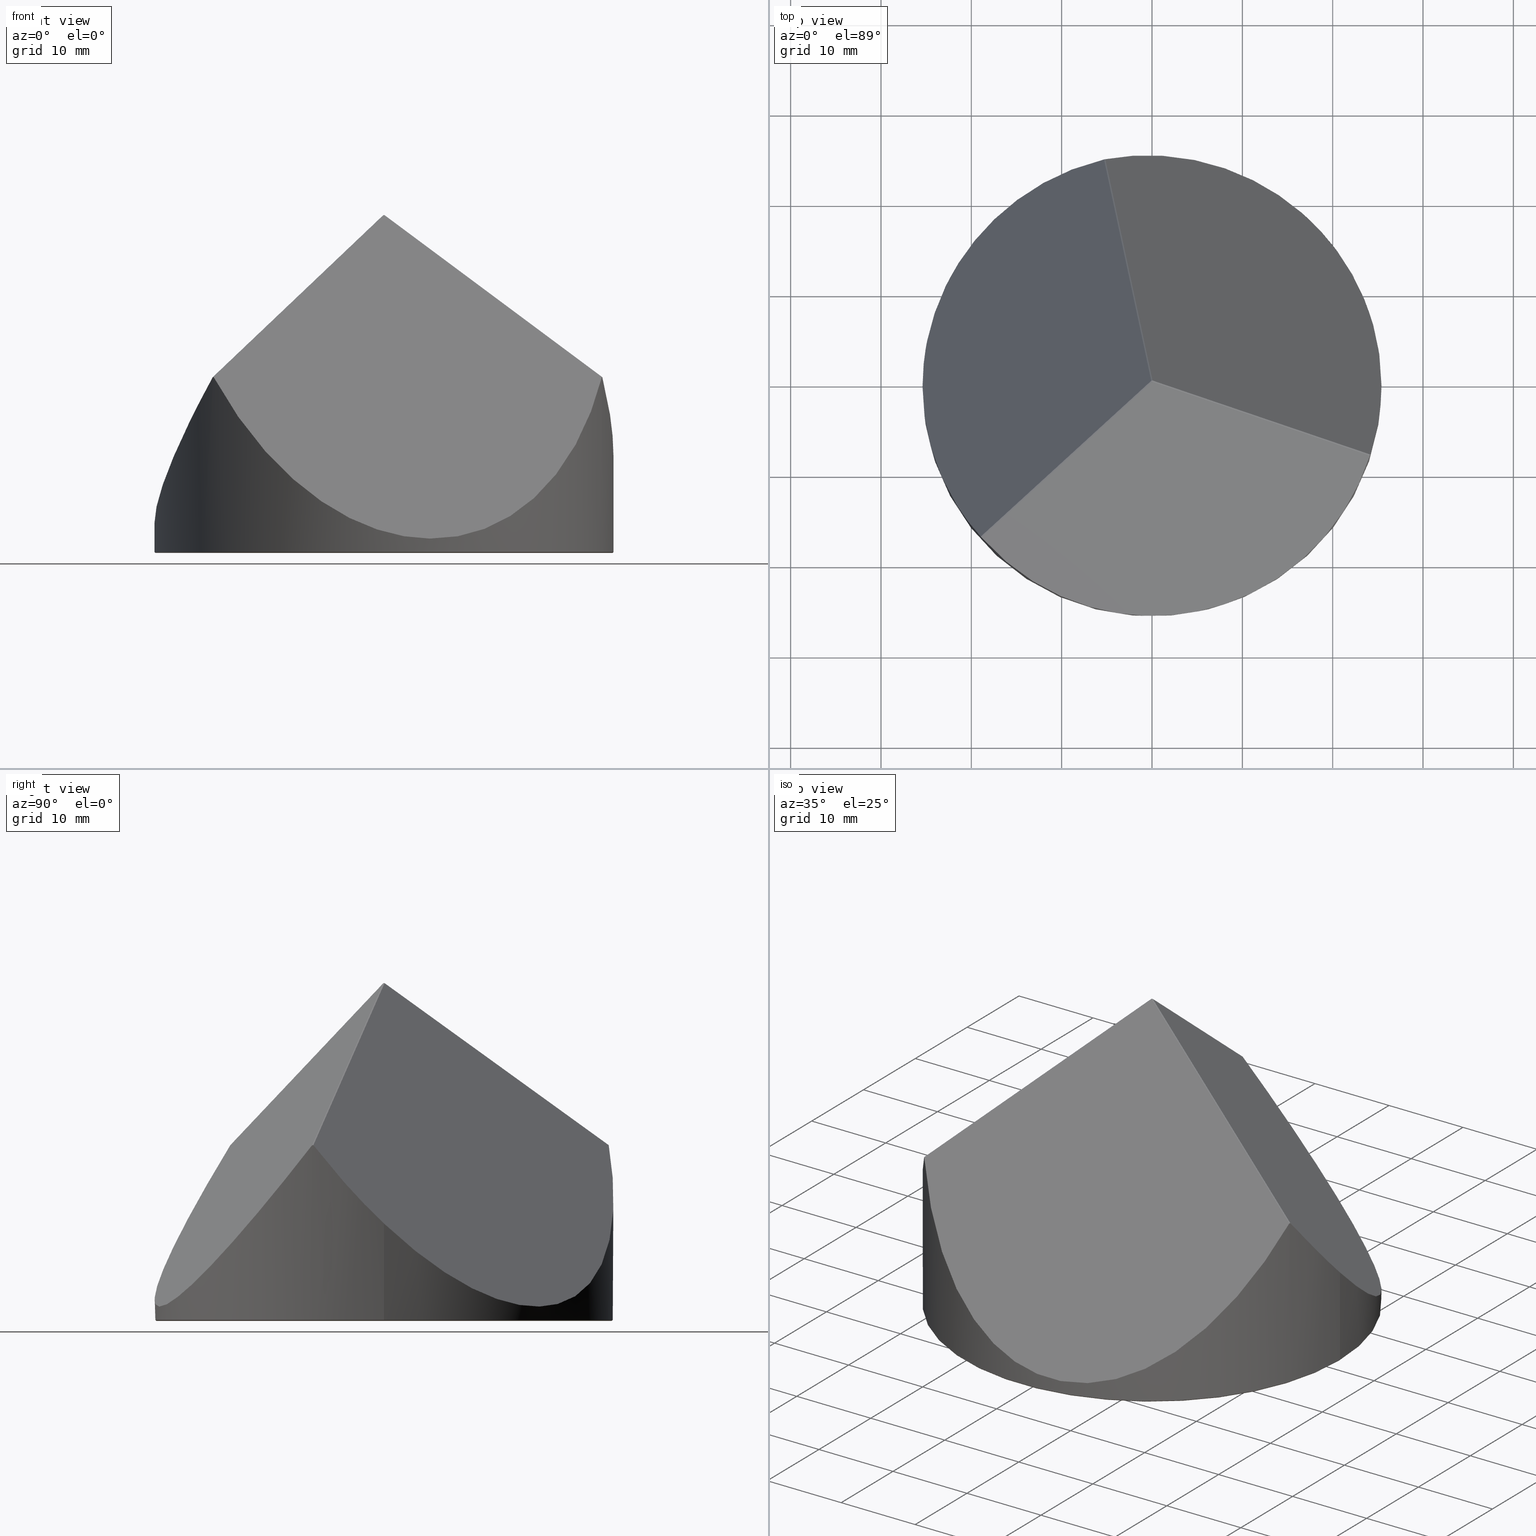
[diagram: canonical four-view strip — front | top / right | iso, engineering-drawing reading convention]
A machine part, canonical four-view strip (front | top / right | iso — engineering-drawing reading convention). The complete STEP part file that produces these views, byte-faithful:
ISO-10303-21;
HEADER;
FILE_DESCRIPTION (( 'STEP AP214' ),
    '1' );
FILE_NAME ('GP26-050-1.STEP',
    '2024-08-15T09:56:34',
    ( 'Windows User' ),
    ( 'P R C' ),
    'SwSTEP 2.0',
    'SolidWorks 2022',
    '' );
FILE_SCHEMA (( 'AUTOMOTIVE_DESIGN' ));
ENDSEC;

DATA;
#1 = FACE_OUTER_BOUND ( 'NONE', #69, .T. ) ;
#2 = ORIENTED_EDGE ( 'NONE', *, *, #347, .F. ) ;
#3 = FILL_AREA_STYLE ('',( #157 ) ) ;
#4 = DIRECTION ( 'NONE',  ( 0.1190464341463257220, -0.5649436076728171496, -0.8164965809277259234 ) ) ;
#5 = CLOSED_SHELL ( 'NONE', ( #63, #17, #47, #192, #82, #278, #36, #299, #246, #363, #242, #279 ) ) ;
#6 = EDGE_CURVE ( 'NONE', #99, #176, #202, .T. ) ;
#7 = ORIENTED_EDGE ( 'NONE', *, *, #105, .T. ) ;
#8 = ORIENTED_EDGE ( 'NONE', *, *, #100, .F. ) ;
#9 =( BOUNDED_CURVE ( )  B_SPLINE_CURVE ( 3, ( #313, #254, #119, #168 ),
 .UNSPECIFIED., .F., .F. ) 
 B_SPLINE_CURVE_WITH_KNOTS ( ( 4, 4 ),
 ( 0.3159145209226036921, 1.044413662635419904 ),
 .UNSPECIFIED. ) 
 CURVE ( )  GEOMETRIC_REPRESENTATION_ITEM ( )  RATIONAL_B_SPLINE_CURVE ( ( 1.000000000000000000, 0.9562609088465704454, 0.9562609088465704454, 1.000000000000000000 ) ) 
 REPRESENTATION_ITEM ( '' )  );
#10 = DIRECTION ( 'NONE',  ( -0.7071067811865598962, 8.659560562355083235E-17, 0.7071067811865351382 ) ) ;
#11 = AXIS2_PLACEMENT_3D ( 'NONE', #135, #214, #253 ) ;
#12 = ORIENTED_EDGE ( 'NONE', *, *, #241, .T. ) ;
#13 = EDGE_LOOP ( 'NONE', ( #91, #67 ) ) ;
#14 = CIRCLE ( 'NONE', #118, 25.39999999999999858 ) ;
#15 = VERTEX_POINT ( 'NONE', #128 ) ;
#16 = ORIENTED_EDGE ( 'NONE', *, *, #49, .T. ) ;
#17 = ADVANCED_FACE ( 'NONE', ( #232 ), #92, .T. ) ;
#18 = SURFACE_STYLE_USAGE ( .BOTH. , #53 ) ;
#19 = CIRCLE ( 'NONE', #327, 25.39999999999999858 ) ;
#20 = CARTESIAN_POINT ( 'NONE',  ( -16.56111697540093530, 5.413189357140098856, 12.32017074737943041 ) ) ;
#21 = DIRECTION ( 'NONE',  ( -0.000000000000000000, -0.000000000000000000, -1.000000000000000000 ) ) ;
#22 = CONICAL_SURFACE ( 'NONE', #113, 25.30000000000002203, 0.7853981633974657095 ) ;
#23 =( BOUNDED_CURVE ( )  B_SPLINE_CURVE ( 3, ( #138, #304, #52, #51 ),
 .UNSPECIFIED., .F., .T. ) 
 B_SPLINE_CURVE_WITH_KNOTS ( ( 4, 4 ),
 ( 5.238771644544163664, 5.551902276905597233 ),
 .UNSPECIFIED. ) 
 CURVE ( )  GEOMETRIC_REPRESENTATION_ITEM ( )  RATIONAL_B_SPLINE_CURVE ( ( 1.000000000000000000, 0.9918457778570393124, 0.9918457778570393124, 1.000000000000000000 ) ) 
 REPRESENTATION_ITEM ( '' )  );
#24 = DIRECTION ( 'NONE',  ( 0.7071067811865598962, 0.000000000000000000, 0.7071067811865351382 ) ) ;
#25 = CARTESIAN_POINT ( 'NONE',  ( -5.168128125611016088, 24.86866405091493348, 18.91346705688051344 ) ) ;
#26 = DIRECTION ( 'NONE',  ( 0.1683570817218961180, -0.7989509119468820586, 0.5773502691896249539 ) ) ;
#27 =( NAMED_UNIT ( * ) SI_UNIT ( $, .STERADIAN. ) SOLID_ANGLE_UNIT ( ) );
#28 = CARTESIAN_POINT ( 'NONE',  ( 24.15037539174727499, -7.869027301477095726, 18.91337426047529746 ) ) ;
#29 =( BOUNDED_CURVE ( )  B_SPLINE_CURVE ( 3, ( #110, #147, #124, #283 ),
 .UNSPECIFIED., .F., .F. ) 
 B_SPLINE_CURVE_WITH_KNOTS ( ( 4, 4 ),
 ( 6.280401418618429155, 6.285969195740780613 ),
 .UNSPECIFIED. ) 
 CURVE ( )  GEOMETRIC_REPRESENTATION_ITEM ( )  RATIONAL_B_SPLINE_CURVE ( ( 1.000000000000000000, 0.9999974166564946643, 0.9999974166564946643, 1.000000000000000000 ) ) 
 REPRESENTATION_ITEM ( '' )  );
#30 = DIRECTION ( 'NONE',  ( 0.000000000000000000, -1.000000000000000000, 9.327454625329653939E-14 ) ) ;
#31 = LINE ( 'NONE', #340, #248 ) ;
#32 = SURFACE_SIDE_STYLE ('',( #142 ) ) ;
#33 = DIRECTION ( 'NONE',  ( 0.6077332452617951741, 0.5452769656516149865, 0.5773502691896267303 ) ) ;
#34 =( BOUNDED_CURVE ( )  B_SPLINE_CURVE ( 3, ( #290, #150, #262, #139 ),
 .UNSPECIFIED., .F., .F. ) 
 B_SPLINE_CURVE_WITH_KNOTS ( ( 4, 4 ),
 ( 5.551902276905597233, 7.327598969815007912 ),
 .UNSPECIFIED. ) 
 CURVE ( )  GEOMETRIC_REPRESENTATION_ITEM ( )  RATIONAL_B_SPLINE_CURVE ( ( 1.000000000000000000, 0.7540550383317463634, 0.7540550383317463634, 1.000000000000000000 ) ) 
 REPRESENTATION_ITEM ( '' )  );
#35 = ORIENTED_EDGE ( 'NONE', *, *, #273, .F. ) ;
#36 = ADVANCED_FACE ( 'NONE', ( #96 ), #71, .T. ) ;
#37 = ORIENTED_EDGE ( 'NONE', *, *, #273, .T. ) ;
#38 = LINE ( 'NONE', #259, #163 ) ;
#39 = VECTOR ( 'NONE', #228, 999.9999999999998863 ) ;
#40 = CARTESIAN_POINT ( 'NONE',  ( -3.514989956223204537, 17.02357529968344352, 24.58260646783990566 ) ) ;
#41 = ORIENTED_EDGE ( 'NONE', *, *, #210, .F. ) ;
#42 = ORIENTED_EDGE ( 'NONE', *, *, #174, .F. ) ;
#43 = DIRECTION ( 'NONE',  ( 0.4297322988771145047, 0.3855690400370906934, -0.8164965809277261455 ) ) ;
#44 = ORIENTED_EDGE ( 'NONE', *, *, #311, .T. ) ;
#45 =( NAMED_UNIT ( * ) PLANE_ANGLE_UNIT ( ) SI_UNIT ( $, .RADIAN. ) );
#46 = CARTESIAN_POINT ( 'NONE',  ( 0.000000000000000000, 0.000000000000000000, -0.4400000000000237055 ) ) ;
#47 = ADVANCED_FACE ( 'NONE', ( #357 ), #187, .T. ) ;
#48 =( NAMED_UNIT ( * ) SI_UNIT ( $, .STERADIAN. ) SOLID_ANGLE_UNIT ( ) );
#49 = EDGE_CURVE ( 'NONE', #286, #123, #287, .T. ) ;
#50 = VECTOR ( 'NONE', #87, 1000.000000000000114 ) ;
#51 = CARTESIAN_POINT ( 'NONE',  ( 25.39999999999999858, 3.110602869834276865E-15, 10.22384084278788308 ) ) ;
#52 = CARTESIAN_POINT ( 'NONE',  ( 25.40000000000000924, -2.662061765035191208, 12.73801817858958607 ) ) ;
#53 = SURFACE_SIDE_STYLE ('',( #134 ) ) ;
#54 = DIRECTION ( 'NONE',  ( 0.7760903269836917362, -0.2536739462952649626, -0.5773502691896257311 ) ) ;
#55 = VECTOR ( 'NONE', #336, 1000.000000000000000 ) ;
#56 = DIRECTION ( 'NONE',  ( -1.000000000000000000, 0.000000000000000000, 0.000000000000000000 ) ) ;
#57 = EDGE_CURVE ( 'NONE', #15, #155, #14, .T. ) ;
#58 = DIRECTION ( 'NONE',  ( 3.048784582708371628E-14, 9.327454625329653939E-14, 1.000000000000000000 ) ) ;
#59 = MANIFOLD_SOLID_BREP ( '����2', #5 ) ;
#60 = VECTOR ( 'NONE', #24, 1000.000000000000114 ) ;
#61 = DIRECTION ( 'NONE',  ( 0.000000000000000000, 0.000000000000000000, -1.000000000000000000 ) ) ;
#62 = LINE ( 'NONE', #199, #50 ) ;
#63 = ADVANCED_FACE ( 'NONE', ( #297 ), #177, .T. ) ;
#64 = ORIENTED_EDGE ( 'NONE', *, *, #100, .T. ) ;
#65 = PLANE ( 'NONE',  #366 ) ;
#66 = DIRECTION ( 'NONE',  ( 1.000000000000000000, 0.000000000000000000, 0.000000000000000000 ) ) ;
#67 = ORIENTED_EDGE ( 'NONE', *, *, #251, .T. ) ;
#68 = CARTESIAN_POINT ( 'NONE',  ( -12.98535369465153266, -11.55585824597818068, 24.58260646783991277 ) ) ;
#69 = EDGE_LOOP ( 'NONE', ( #37, #7, #2 ) ) ;
#70 = DIRECTION ( 'NONE',  ( -1.000000000000000000, 0.000000000000000000, 0.000000000000000000 ) ) ;
#71 = PLANE ( 'NONE',  #141 ) ;
#72 = APPLICATION_CONTEXT ( 'automotive_design' ) ;
#73 =( BOUNDED_CURVE ( )  B_SPLINE_CURVE ( 3, ( #116, #28, #310, #167 ),
 .UNSPECIFIED., .F., .T. ) 
 B_SPLINE_CURVE_WITH_KNOTS ( ( 4, 4 ),
 ( 6.280401418618504650, 6.285969195740848114 ),
 .UNSPECIFIED. ) 
 CURVE ( )  GEOMETRIC_REPRESENTATION_ITEM ( )  RATIONAL_B_SPLINE_CURVE ( ( 1.000000000000000000, 0.9999974166564946643, 0.9999974166564946643, 1.000000000000000000 ) ) 
 REPRESENTATION_ITEM ( '' )  );
#74 = ORIENTED_EDGE ( 'NONE', *, *, #126, .F. ) ;
#75 = DIRECTION ( 'NONE',  ( 0.000000000000000000, 0.000000000000000000, 1.000000000000000000 ) ) ;
#76 = CARTESIAN_POINT ( 'NONE',  ( 16.54428126722876868, -5.333294265945349721, 24.58260646783990566 ) ) ;
#77 = VECTOR ( 'NONE', #211, 1000.000000000000227 ) ;
#78 = DIRECTION ( 'NONE',  ( 0.000000000000000000, 0.000000000000000000, 1.000000000000000000 ) ) ;
#79 = VECTOR ( 'NONE', #353, 1000.000000000000114 ) ;
#80 = LINE ( 'NONE', #221, #280 ) ;
#81 =( NAMED_UNIT ( * ) PLANE_ANGLE_UNIT ( ) SI_UNIT ( $, .RADIAN. ) );
#82 = ADVANCED_FACE ( 'NONE', ( #359 ), #362, .T. ) ;
#83 = MECHANICAL_DESIGN_GEOMETRIC_PRESENTATION_REPRESENTATION (  '', ( #101 ), #255 ) ;
#84 = DIRECTION ( 'NONE',  ( -0.1683570817218947302, 0.7989509119468816145, -0.5773502691896258421 ) ) ;
#85 = PLANE ( 'NONE',  #106 ) ;
#86 = CARTESIAN_POINT ( 'NONE',  ( 0.01683570817220000904, -0.07989509119468762854, 36.84504218830038269 ) ) ;
#87 = DIRECTION ( 'NONE',  ( -0.7760903269836917362, 0.2536739462952649626, 0.5773502691896257311 ) ) ;
#88 = STYLED_ITEM ( 'NONE', ( #312 ), #341 ) ;
#89 = ORIENTED_EDGE ( 'NONE', *, *, #252, .F. ) ;
#90 = ORIENTED_EDGE ( 'NONE', *, *, #306, .T. ) ;
#91 = ORIENTED_EDGE ( 'NONE', *, *, #239, .T. ) ;
#92 = CYLINDRICAL_SURFACE ( 'NONE', #193, 25.39999999999999858 ) ;
#93 = DIRECTION ( 'NONE',  ( 0.6077332452617961733, 0.5452769656516147645, 0.5773502691896256200 ) ) ;
#94 = AXIS2_PLACEMENT_3D ( 'NONE', #219, #26, #330 ) ;
#95 =( BOUNDED_CURVE ( )  B_SPLINE_CURVE ( 3, ( #159, #274, #243, #240 ),
 .UNSPECIFIED., .F., .T. ) 
 B_SPLINE_CURVE_WITH_KNOTS ( ( 4, 4 ),
 ( 5.238771644544156558, 7.327598969815005248 ),
 .UNSPECIFIED. ) 
 CURVE ( )  GEOMETRIC_REPRESENTATION_ITEM ( )  RATIONAL_B_SPLINE_CURVE ( ( 1.000000000000000000, 0.6682726517290241697, 0.6682726517290241697, 1.000000000000000000 ) ) 
 REPRESENTATION_ITEM ( '' )  );
#96 = FACE_OUTER_BOUND ( 'NONE', #13, .T. ) ;
#97 = PLANE ( 'NONE',  #302 ) ;
#98 = ORIENTED_EDGE ( 'NONE', *, *, #269, .F. ) ;
#99 = VERTEX_POINT ( 'NONE', #137 ) ;
#100 = EDGE_CURVE ( 'NONE', #286, #99, #125, .T. ) ;
#101 = STYLED_ITEM ( 'NONE', ( #104 ), #59 ) ;
#102 = CARTESIAN_POINT ( 'NONE',  ( -5.306510482835705034, 24.83950374897926494, 18.91346705688070173 ) ) ;
#103 = LINE ( 'NONE', #76, #212 ) ;
#104 = PRESENTATION_STYLE_ASSIGNMENT (( #18 ) ) ;
#105 = EDGE_CURVE ( 'NONE', #176, #319, #136, .T. ) ;
#106 = AXIS2_PLACEMENT_3D ( 'NONE', #195, #4, #84 ) ;
#107 = CARTESIAN_POINT ( 'NONE',  ( 24.12095888907871455, -7.958601778665308046, 18.91346705688044239 ) ) ;
#108 =( GEOMETRIC_REPRESENTATION_CONTEXT ( 3 ) GLOBAL_UNCERTAINTY_ASSIGNED_CONTEXT ( ( #156 ) ) GLOBAL_UNIT_ASSIGNED_CONTEXT ( ( #181, #45, #48 ) ) REPRESENTATION_CONTEXT ( 'NONE', 'WORKASPACE' ) );
#109 = CARTESIAN_POINT ( 'NONE',  ( -5.214282578149510350, 24.85907237667790426, 18.91337426047530101 ) ) ;
#110 = CARTESIAN_POINT ( 'NONE',  ( -18.85838602259694241, -17.01532475807383804, 18.91346705688074437 ) ) ;
#111 = EDGE_CURVE ( 'NONE', #263, #148, #95, .T. ) ;
#112 = VECTOR ( 'NONE', #260, 1000.000000000000000 ) ;
#113 = AXIS2_PLACEMENT_3D ( 'NONE', #344, #178, #66 ) ;
#114 = CARTESIAN_POINT ( 'NONE',  ( -0.07760903269836753882, 0.02536739462953004759, 36.84504218830037559 ) ) ;
#115 = CARTESIAN_POINT ( 'NONE',  ( -18.85838602259694241, -17.01532475807383804, 18.91346705688074437 ) ) ;
#116 = CARTESIAN_POINT ( 'NONE',  ( 24.16489650543270074, -7.824178990905487296, 18.91346705688055252 ) ) ;
#117 = ORIENTED_EDGE ( 'NONE', *, *, #347, .T. ) ;
#118 = AXIS2_PLACEMENT_3D ( 'NONE', #46, #78, #189 ) ;
#119 = CARTESIAN_POINT ( 'NONE',  ( -23.15264638311981571, -12.20290073756595639, 11.19974324389854559 ) ) ;
#120 = DIRECTION ( 'NONE',  ( 0.6887517733186873103, 0.000000000000000000, -0.7249972377536092472 ) ) ;
#121 = DIRECTION ( 'NONE',  ( -0.6077332452617962844, -0.5452769656516146535, -0.5773502691896257311 ) ) ;
#122 = ORIENTED_EDGE ( 'NONE', *, *, #309, .T. ) ;
#123 = VERTEX_POINT ( 'NONE', #328 ) ;
#124 = CARTESIAN_POINT ( 'NONE',  ( -18.92144690364426651, -16.94523736352709875, 18.91337426047528680 ) ) ;
#125 =( BOUNDED_CURVE ( )  B_SPLINE_CURVE ( 3, ( #361, #215, #109, #25 ),
 .UNSPECIFIED., .F., .T. ) 
 B_SPLINE_CURVE_WITH_KNOTS ( ( 4, 4 ),
 ( 6.280401418618402509, 6.285969195740753079 ),
 .UNSPECIFIED. ) 
 CURVE ( )  GEOMETRIC_REPRESENTATION_ITEM ( )  RATIONAL_B_SPLINE_CURVE ( ( 1.000000000000000000, 0.9999974166564946643, 0.9999974166564946643, 1.000000000000000000 ) ) 
 REPRESENTATION_ITEM ( '' )  );
#126 = EDGE_CURVE ( 'NONE', #155, #15, #19, .T. ) ;
#127 = VERTEX_POINT ( 'NONE', #298 ) ;
#128 = CARTESIAN_POINT ( 'NONE',  ( 25.39999999999999858, 3.110602869834276865E-15, -0.4400000000000237055 ) ) ;
#129 = ORIENTED_EDGE ( 'NONE', *, *, #169, .F. ) ;
#130 = CARTESIAN_POINT ( 'NONE',  ( 25.39999999999999858, 3.110602869834276865E-15, 10.22384084278788308 ) ) ;
#131 = EDGE_LOOP ( 'NONE', ( #16, #149, #346, #172 ) ) ;
#132 = ORIENTED_EDGE ( 'NONE', *, *, #210, .T. ) ;
#133 = DIRECTION ( 'NONE',  ( -0.7760903269836911811, 0.2536739462952673496, 0.5773502691896257311 ) ) ;
#134 = SURFACE_STYLE_FILL_AREA ( #303 ) ;
#135 = CARTESIAN_POINT ( 'NONE',  ( 0.000000000000000000, 0.000000000000000000, 0.000000000000000000 ) ) ;
#136 = LINE ( 'NONE', #191, #77 ) ;
#137 = CARTESIAN_POINT ( 'NONE',  ( -5.168128125611016088, 24.86866405091493348, 18.91346705688051344 ) ) ;
#138 = CARTESIAN_POINT ( 'NONE',  ( 24.16489650543270074, -7.824178990905487296, 18.91346705688055252 ) ) ;
#139 = CARTESIAN_POINT ( 'NONE',  ( -5.168128125611016088, 24.86866405091493348, 18.91346705688051344 ) ) ;
#140 = EDGE_CURVE ( 'NONE', #176, #127, #103, .T. ) ;
#141 = AXIS2_PLACEMENT_3D ( 'NONE', #165, #270, #272 ) ;
#142 = SURFACE_STYLE_FILL_AREA ( #3 ) ;
#143 = FACE_OUTER_BOUND ( 'NONE', #321, .T. ) ;
#144 = EDGE_LOOP ( 'NONE', ( #41, #151, #35, #98 ) ) ;
#145 = ORIENTED_EDGE ( 'NONE', *, *, #261, .T. ) ;
#146 = AXIS2_PLACEMENT_3D ( 'NONE', #281, #61, #223 ) ;
#147 = CARTESIAN_POINT ( 'NONE',  ( -18.88996524202608995, -16.98032494944516912, 18.91337426047529036 ) ) ;
#148 = VERTEX_POINT ( 'NONE', #107 ) ;
#149 = ORIENTED_EDGE ( 'NONE', *, *, #252, .T. ) ;
#150 = CARTESIAN_POINT ( 'NONE',  ( 25.39999999999999858, 17.41975240290805260, -6.228199174431550134 ) ) ;
#151 = ORIENTED_EDGE ( 'NONE', *, *, #140, .F. ) ;
#152 = CARTESIAN_POINT ( 'NONE',  ( -0.07760903269836753882, 0.02536739462953004759, 36.84504218830037559 ) ) ;
#153 = PRODUCT_DEFINITION_SHAPE ( 'NONE', 'NONE',  #217 ) ;
#154 = SHAPE_DEFINITION_REPRESENTATION ( #153, #341 ) ;
#155 = VERTEX_POINT ( 'NONE', #331 ) ;
#156 = UNCERTAINTY_MEASURE_WITH_UNIT (LENGTH_MEASURE( 1.000000000000000082E-05 ), #181, 'distance_accuracy_value', 'NONE');
#157 = FILL_AREA_STYLE_COLOUR ( '', #196 ) ;
#158 = ORIENTED_EDGE ( 'NONE', *, *, #140, .T. ) ;
#159 = CARTESIAN_POINT ( 'NONE',  ( -18.85838602259694241, -17.01532475807383804, 18.91346705688074437 ) ) ;
#160 = DIRECTION ( 'NONE',  ( -1.000000000000000000, 0.000000000000000000, 0.000000000000000000 ) ) ;
#161 = AXIS2_PLACEMENT_3D ( 'NONE', #332, #334, #275 ) ;
#162 = CARTESIAN_POINT ( 'NONE',  ( 25.30000000000002203, 0.000000000000000000, -0.5399999999999988143 ) ) ;
#163 = VECTOR ( 'NONE', #10, 1000.000000000000114 ) ;
#164 = CARTESIAN_POINT ( 'NONE',  ( -25.39999999999999858, 0.000000000000000000, 2.817124151136544796 ) ) ;
#165 = CARTESIAN_POINT ( 'NONE',  ( 0.000000000000000000, 0.000000000000000000, -0.5400000000000000355 ) ) ;
#166 = FACE_OUTER_BOUND ( 'NONE', #131, .T. ) ;
#167 = CARTESIAN_POINT ( 'NONE',  ( 24.12095888907871455, -7.958601778665308046, 18.91346705688044239 ) ) ;
#168 = CARTESIAN_POINT ( 'NONE',  ( -18.95283076346759898, -16.91006227224950820, 18.91346705688047081 ) ) ;
#169 = EDGE_CURVE ( 'NONE', #355, #15, #245, .T. ) ;
#170 =( LENGTH_UNIT ( ) NAMED_UNIT ( * ) SI_UNIT ( .MILLI., .METRE. ) );
#171 = ORIENTED_EDGE ( 'NONE', *, *, #126, .T. ) ;
#172 = ORIENTED_EDGE ( 'NONE', *, *, #173, .T. ) ;
#173 = EDGE_CURVE ( 'NONE', #319, #286, #80, .T. ) ;
#174 = EDGE_CURVE ( 'NONE', #127, #355, #23, .T. ) ;
#175 = APPLICATION_PROTOCOL_DEFINITION ( 'draft international standard', 'automotive_design', 1998, #308 ) ;
#176 = VERTEX_POINT ( 'NONE', #244 ) ;
#177 = CONICAL_SURFACE ( 'NONE', #161, 25.30000000000002203, 0.7853981633974657095 ) ;
#178 = DIRECTION ( 'NONE',  ( 0.000000000000000000, 0.000000000000000000, 1.000000000000000000 ) ) ;
#179 = ORIENTED_EDGE ( 'NONE', *, *, #269, .T. ) ;
#180 = LINE ( 'NONE', #152, #79 ) ;
#181 =( LENGTH_UNIT ( ) NAMED_UNIT ( * ) SI_UNIT ( .MILLI., .METRE. ) );
#182 = ORIENTED_EDGE ( 'NONE', *, *, #241, .F. ) ;
#183 = EDGE_LOOP ( 'NONE', ( #345, #264, #289, #182, #323, #64 ) ) ;
#184 =( NAMED_UNIT ( * ) SI_UNIT ( $, .STERADIAN. ) SOLID_ANGLE_UNIT ( ) );
#185 = DIRECTION ( 'NONE',  ( -1.000000000000000000, 0.000000000000000000, 0.000000000000000000 ) ) ;
#186 = LINE ( 'NONE', #162, #60 ) ;
#187 = CYLINDRICAL_SURFACE ( 'NONE', #188, 25.39999999999999858 ) ;
#188 = AXIS2_PLACEMENT_3D ( 'NONE', #305, #21, #160 ) ;
#189 = DIRECTION ( 'NONE',  ( -1.000000000000000000, 0.000000000000000000, 0.000000000000000000 ) ) ;
#190 = PRODUCT_DEFINITION_FORMATION_WITH_SPECIFIED_SOURCE ( '�κ�', '', #238, .NOT_KNOWN. ) ;
#191 = CARTESIAN_POINT ( 'NONE',  ( -0.07760903269836753882, 0.02536739462953004759, 36.84504218830037559 ) ) ;
#192 = ADVANCED_FACE ( 'NONE', ( #166 ), #271, .T. ) ;
#193 = AXIS2_PLACEMENT_3D ( 'NONE', #204, #322, #70 ) ;
#194 = CARTESIAN_POINT ( 'NONE',  ( 25.39999999999999858, 3.110602869834276865E-15, 19.00000000000000000 ) ) ;
#195 = CARTESIAN_POINT ( 'NONE',  ( -3.653372313447766029, 16.99441499774780695, 24.58260646783990566 ) ) ;
#196 = COLOUR_RGB ( '',1.000000000000000000, 1.000000000000000000, 1.000000000000000000 ) ;
#197 = FACE_OUTER_BOUND ( 'NONE', #291, .T. ) ;
#198 = PLANE ( 'NONE',  #301 ) ;
#199 = CARTESIAN_POINT ( 'NONE',  ( 16.50034365087477539, -5.467717053705210439, 24.58260646783990921 ) ) ;
#200 = EDGE_CURVE ( 'NONE', #203, #15, #186, .T. ) ;
#201 = APPLICATION_PROTOCOL_DEFINITION ( 'draft international standard', 'automotive_design', 1998, #72 ) ;
#202 = LINE ( 'NONE', #40, #112 ) ;
#203 = VERTEX_POINT ( 'NONE', #339 ) ;
#204 = CARTESIAN_POINT ( 'NONE',  ( 0.000000000000000000, 0.000000000000000000, 19.00000000000000000 ) ) ;
#205 = AXIS2_PLACEMENT_3D ( 'NONE', #114, #58, #30 ) ;
#206 = ORIENTED_EDGE ( 'NONE', *, *, #105, .F. ) ;
#207 = LINE ( 'NONE', #68, #282 ) ;
#208 = CARTESIAN_POINT ( 'NONE',  ( 16.54428126722876868, -5.333294265945349721, 24.58260646783990566 ) ) ;
#209 = EDGE_LOOP ( 'NONE', ( #117, #236, #257, #231 ) ) ;
#210 = EDGE_CURVE ( 'NONE', #127, #148, #73, .T. ) ;
#211 = DIRECTION ( 'NONE',  ( -0.9785110319005634327, -0.2061944724014065089, 4.907193138578176547E-14 ) ) ;
#212 = VECTOR ( 'NONE', #54, 1000.000000000000114 ) ;
#213 = CARTESIAN_POINT ( 'NONE',  ( 0.000000000000000000, 0.000000000000000000, -0.4400000000000237055 ) ) ;
#214 = DIRECTION ( 'NONE',  ( 0.000000000000000000, 0.000000000000000000, 1.000000000000000000 ) ) ;
#215 = CARTESIAN_POINT ( 'NONE',  ( -5.260410149721108652, 24.84935225092225508, 18.91337426047529746 ) ) ;
#216 =( LENGTH_UNIT ( ) NAMED_UNIT ( * ) SI_UNIT ( .MILLI., .METRE. ) );
#217 = PRODUCT_DEFINITION ( 'δ֪', '', #190, #356 ) ;
#218 = AXIS2_PLACEMENT_3D ( 'NONE', #20, #133, #358 ) ;
#219 = CARTESIAN_POINT ( 'NONE',  ( 3.592598988921612779, -17.04894269431294873, 12.32017074737939843 ) ) ;
#220 =( GEOMETRIC_REPRESENTATION_CONTEXT ( 3 ) GLOBAL_UNCERTAINTY_ASSIGNED_CONTEXT ( ( #268 ) ) GLOBAL_UNIT_ASSIGNED_CONTEXT ( ( #170, #333, #184 ) ) REPRESENTATION_CONTEXT ( 'NONE', 'WORKASPACE' ) );
#221 = CARTESIAN_POINT ( 'NONE',  ( -3.653372313447764697, 16.99441499774780695, 24.58260646783990566 ) ) ;
#222 = CARTESIAN_POINT ( 'NONE',  ( 0.000000000000000000, 0.000000000000000000, -0.5400000000000000355 ) ) ;
#223 = DIRECTION ( 'NONE',  ( -1.000000000000000000, 0.000000000000000000, 0.000000000000000000 ) ) ;
#224 = CARTESIAN_POINT ( 'NONE',  ( 0.03880451634919888926, -0.01268369731476980643, 36.84504218830037559 ) ) ;
#225 = DIRECTION ( 'NONE',  ( 0.000000000000000000, 0.000000000000000000, -1.000000000000000000 ) ) ;
#226 = ORIENTED_EDGE ( 'NONE', *, *, #6, .T. ) ;
#227 = PRESENTATION_LAYER_ASSIGNMENT (  '', '', ( #88 ) ) ;
#228 = DIRECTION ( 'NONE',  ( 0.3106858647308352595, 0.9505126477098836402, -9.812423661582172580E-14 ) ) ;
#229 = ORIENTED_EDGE ( 'NONE', *, *, #174, .T. ) ;
#230 = ORIENTED_EDGE ( 'NONE', *, *, #6, .F. ) ;
#231 = ORIENTED_EDGE ( 'NONE', *, *, #311, .F. ) ;
#232 = FACE_OUTER_BOUND ( 'NONE', #183, .T. ) ;
#233 = DIRECTION ( 'NONE',  ( -0.6077332452617962844, -0.5452769656516146535, -0.5773502691896257311 ) ) ;
#234 = VERTEX_POINT ( 'NONE', #249 ) ;
#235 = FACE_OUTER_BOUND ( 'NONE', #144, .T. ) ;
#236 = ORIENTED_EDGE ( 'NONE', *, *, #296, .F. ) ;
#237 = ORIENTED_EDGE ( 'NONE', *, *, #306, .F. ) ;
#238 = PRODUCT ( 'GP26-050-1', 'GP26-050-1', '', ( #293 ) ) ;
#239 = EDGE_CURVE ( 'NONE', #203, #267, #320, .T. ) ;
#240 = CARTESIAN_POINT ( 'NONE',  ( 24.12095888907871455, -7.958601778665308046, 18.91346705688044239 ) ) ;
#241 = EDGE_CURVE ( 'NONE', #123, #155, #277, .T. ) ;
#242 = ADVANCED_FACE ( 'NONE', ( #1 ), #367, .T. ) ;
#243 = CARTESIAN_POINT ( 'NONE',  ( 17.25624912604057570, -28.76418881325986376, -7.876024622089468963 ) ) ;
#244 = CARTESIAN_POINT ( 'NONE',  ( 0.06077332452619520209, 0.05452769656517421348, 36.84504218830036848 ) ) ;
#245 = LINE ( 'NONE', #194, #55 ) ;
#246 = ADVANCED_FACE ( 'NONE', ( #197 ), #85, .F. ) ;
#247 = CARTESIAN_POINT ( 'NONE',  ( -25.39999999999999858, 0.000000000000000000, 19.00000000000000000 ) ) ;
#248 = VECTOR ( 'NONE', #233, 1000.000000000000000 ) ;
#249 = CARTESIAN_POINT ( 'NONE',  ( -18.95283076346759898, -16.91006227224950820, 18.91346705688047081 ) ) ;
#250 = PRODUCT_RELATED_PRODUCT_CATEGORY ( 'part', '', ( #238 ) ) ;
#251 = EDGE_CURVE ( 'NONE', #267, #203, #307, .T. ) ;
#252 = EDGE_CURVE ( 'NONE', #123, #234, #9, .T. ) ;
#253 = DIRECTION ( 'NONE',  ( 1.000000000000000000, 0.000000000000000000, 0.000000000000000000 ) ) ;
#254 = CARTESIAN_POINT ( 'NONE',  ( -25.39999999999999503, -6.308392897773503982, 5.588881620662570882 ) ) ;
#255 =( GEOMETRIC_REPRESENTATION_CONTEXT ( 3 ) GLOBAL_UNCERTAINTY_ASSIGNED_CONTEXT ( ( #326 ) ) GLOBAL_UNIT_ASSIGNED_CONTEXT ( ( #216, #81, #27 ) ) REPRESENTATION_CONTEXT ( 'NONE', 'WORKASPACE' ) );
#256 = VERTEX_POINT ( 'NONE', #86 ) ;
#257 = ORIENTED_EDGE ( 'NONE', *, *, #261, .F. ) ;
#258 = CARTESIAN_POINT ( 'NONE',  ( -12.89090895378096668, -11.66112073180240039, 24.58260646783990566 ) ) ;
#259 = CARTESIAN_POINT ( 'NONE',  ( -25.30000000000002203, 3.098356401842805480E-15, -0.5399999999999988143 ) ) ;
#260 = DIRECTION ( 'NONE',  ( 0.1683570817218947302, -0.7989509119468816145, 0.5773502691896258421 ) ) ;
#261 = EDGE_CURVE ( 'NONE', #263, #234, #29, .T. ) ;
#262 = CARTESIAN_POINT ( 'NONE',  ( 11.88722503809127495, 28.41305430031056645, -2.386911835814395477 ) ) ;
#263 = VERTEX_POINT ( 'NONE', #115 ) ;
#264 = ORIENTED_EDGE ( 'NONE', *, *, #169, .T. ) ;
#265 = VECTOR ( 'NONE', #364, 1000.000000000000000 ) ;
#266 = FACE_OUTER_BOUND ( 'NONE', #315, .T. ) ;
#267 = VERTEX_POINT ( 'NONE', #288 ) ;
#268 = UNCERTAINTY_MEASURE_WITH_UNIT (LENGTH_MEASURE( 1.000000000000000082E-05 ), #170, 'distance_accuracy_value', 'NONE');
#269 = EDGE_CURVE ( 'NONE', #148, #256, #62, .T. ) ;
#270 = DIRECTION ( 'NONE',  ( 0.000000000000000000, 0.000000000000000000, -1.000000000000000000 ) ) ;
#271 = PLANE ( 'NONE',  #218 ) ;
#272 = DIRECTION ( 'NONE',  ( -1.000000000000000000, 0.000000000000000000, -0.000000000000000000 ) ) ;
#273 = EDGE_CURVE ( 'NONE', #256, #176, #314, .T. ) ;
#274 = CARTESIAN_POINT ( 'NONE',  ( -4.181779598949180610, -33.28166779731227365, -7.876024622089304650 ) ) ;
#275 = DIRECTION ( 'NONE',  ( 1.000000000000000000, 0.000000000000000000, 0.000000000000000000 ) ) ;
#276 = FILL_AREA_STYLE_COLOUR ( '', #338 ) ;
#277 = LINE ( 'NONE', #247, #265 ) ;
#278 = ADVANCED_FACE ( 'NONE', ( #143 ), #198, .T. ) ;
#279 = ADVANCED_FACE ( 'NONE', ( #343 ), #65, .F. ) ;
#280 = VECTOR ( 'NONE', #337, 1000.000000000000000 ) ;
#281 = CARTESIAN_POINT ( 'NONE',  ( 0.000000000000000000, 0.000000000000000000, -0.5400000000000000355 ) ) ;
#282 = VECTOR ( 'NONE', #93, 1000.000000000000114 ) ;
#283 = CARTESIAN_POINT ( 'NONE',  ( -18.95283076346759898, -16.91006227224950820, 18.91346705688047081 ) ) ;
#284 = ORIENTED_EDGE ( 'NONE', *, *, #239, .F. ) ;
#285 = SURFACE_STYLE_USAGE ( .BOTH. , #32 ) ;
#286 = VERTEX_POINT ( 'NONE', #292 ) ;
#287 =( BOUNDED_CURVE ( )  B_SPLINE_CURVE ( 3, ( #102, #360, #300, #164 ),
 .UNSPECIFIED., .F., .T. ) 
 B_SPLINE_CURVE_WITH_KNOTS ( ( 4, 4 ),
 ( 5.238771644544158335, 6.599099828102190202 ),
 .UNSPECIFIED. ) 
 CURVE ( )  GEOMETRIC_REPRESENTATION_ITEM ( )  RATIONAL_B_SPLINE_CURVE ( ( 1.000000000000000000, 0.8516463523446279327, 0.8516463523446279327, 1.000000000000000000 ) ) 
 REPRESENTATION_ITEM ( '' )  );
#288 = CARTESIAN_POINT ( 'NONE',  ( -25.30000000000002203, 3.104479635838540581E-15, -0.5400000000000000355 ) ) ;
#289 = ORIENTED_EDGE ( 'NONE', *, *, #57, .T. ) ;
#290 = CARTESIAN_POINT ( 'NONE',  ( 25.39999999999999858, 3.110602869834276865E-15, 10.22384084278788308 ) ) ;
#291 = EDGE_LOOP ( 'NONE', ( #8, #348, #206, #230 ) ) ;
#292 = CARTESIAN_POINT ( 'NONE',  ( -5.306510482835705034, 24.83950374897926494, 18.91346705688070173 ) ) ;
#293 = PRODUCT_CONTEXT ( 'NONE', #72, 'mechanical' ) ;
#294 = EDGE_LOOP ( 'NONE', ( #129, #42, #132, #316, #145, #89, #12, #171 ) ) ;
#295 = EDGE_LOOP ( 'NONE', ( #318, #90, #354, #324 ) ) ;
#296 = EDGE_CURVE ( 'NONE', #234, #319, #207, .T. ) ;
#297 = FACE_OUTER_BOUND ( 'NONE', #295, .T. ) ;
#298 = CARTESIAN_POINT ( 'NONE',  ( 24.16489650543270074, -7.824178990905487296, 18.91346705688055252 ) ) ;
#299 = ADVANCED_FACE ( 'NONE', ( #266 ), #22, .T. ) ;
#300 = CARTESIAN_POINT ( 'NONE',  ( -25.39999999999999858, 12.50486458425474012, -2.677215275479166490 ) ) ;
#301 = AXIS2_PLACEMENT_3D ( 'NONE', #317, #33, #120 ) ;
#302 = AXIS2_PLACEMENT_3D ( 'NONE', #208, #325, #335 ) ;
#303 = FILL_AREA_STYLE ('',( #276 ) ) ;
#304 = CARTESIAN_POINT ( 'NONE',  ( 24.98491413277447748, -5.291562965584819089, 15.65837347578350602 ) ) ;
#305 = CARTESIAN_POINT ( 'NONE',  ( 0.000000000000000000, 0.000000000000000000, 19.00000000000000000 ) ) ;
#306 = EDGE_CURVE ( 'NONE', #267, #155, #38, .T. ) ;
#307 = CIRCLE ( 'NONE', #146, 25.30000000000002203 ) ;
#308 = APPLICATION_CONTEXT ( 'automotive_design' ) ;
#309 = EDGE_CURVE ( 'NONE', #355, #99, #34, .T. ) ;
#310 = CARTESIAN_POINT ( 'NONE',  ( 24.13572948179385946, -7.913835013150748665, 18.91337426047530457 ) ) ;
#311 = EDGE_CURVE ( 'NONE', #256, #263, #31, .T. ) ;
#312 = PRESENTATION_STYLE_ASSIGNMENT (( #285 ) ) ;
#313 = CARTESIAN_POINT ( 'NONE',  ( -25.39999999999999858, 0.000000000000000000, 2.817124151136544796 ) ) ;
#314 = LINE ( 'NONE', #224, #39 ) ;
#315 = EDGE_LOOP ( 'NONE', ( #237, #284, #352, #74 ) ) ;
#316 = ORIENTED_EDGE ( 'NONE', *, *, #111, .F. ) ;
#317 = CARTESIAN_POINT ( 'NONE',  ( 12.96851798647934828, 11.63575333717290050, 12.32017074737948015 ) ) ;
#318 = ORIENTED_EDGE ( 'NONE', *, *, #251, .F. ) ;
#319 = VERTEX_POINT ( 'NONE', #350 ) ;
#320 = CIRCLE ( 'NONE', #365, 25.30000000000002203 ) ;
#321 = EDGE_LOOP ( 'NONE', ( #226, #158, #229, #122 ) ) ;
#322 = DIRECTION ( 'NONE',  ( -0.000000000000000000, -0.000000000000000000, -1.000000000000000000 ) ) ;
#323 = ORIENTED_EDGE ( 'NONE', *, *, #49, .F. ) ;
#324 = ORIENTED_EDGE ( 'NONE', *, *, #200, .F. ) ;
#325 = DIRECTION ( 'NONE',  ( -0.5487787330234702443, 0.1793745676356832408, -0.8164965809277260345 ) ) ;
#326 = UNCERTAINTY_MEASURE_WITH_UNIT (LENGTH_MEASURE( 1.000000000000000082E-05 ), #216, 'distance_accuracy_value', 'NONE');
#327 = AXIS2_PLACEMENT_3D ( 'NONE', #213, #75, #185 ) ;
#328 = CARTESIAN_POINT ( 'NONE',  ( -25.39999999999999858, 0.000000000000000000, 2.817124151136544796 ) ) ;
#329 = MECHANICAL_DESIGN_GEOMETRIC_PRESENTATION_REPRESENTATION (  '', ( #88 ), #220 ) ;
#330 = DIRECTION ( 'NONE',  ( 0.000000000000000000, -0.5857106597838052098, -0.8105202175242882667 ) ) ;
#331 = CARTESIAN_POINT ( 'NONE',  ( -25.39999999999999858, 0.000000000000000000, -0.4400000000000237055 ) ) ;
#332 = CARTESIAN_POINT ( 'NONE',  ( 0.000000000000000000, 0.000000000000000000, -0.5399999999999988143 ) ) ;
#333 =( NAMED_UNIT ( * ) PLANE_ANGLE_UNIT ( ) SI_UNIT ( $, .RADIAN. ) );
#334 = DIRECTION ( 'NONE',  ( 0.000000000000000000, 0.000000000000000000, 1.000000000000000000 ) ) ;
#335 = DIRECTION ( 'NONE',  ( 0.7760903269836917362, -0.2536739462952650181, -0.5773502691896258421 ) ) ;
#336 = DIRECTION ( 'NONE',  ( -0.000000000000000000, -0.000000000000000000, -1.000000000000000000 ) ) ;
#337 = DIRECTION ( 'NONE',  ( -0.1683570817218946469, 0.7989509119468816145, -0.5773502691896258421 ) ) ;
#338 = COLOUR_RGB ( '',1.000000000000000000, 1.000000000000000000, 1.000000000000000000 ) ;
#339 = CARTESIAN_POINT ( 'NONE',  ( 25.30000000000002203, 0.000000000000000000, -0.5400000000000000355 ) ) ;
#340 = CARTESIAN_POINT ( 'NONE',  ( -12.89090895378097024, -11.66112073180239683, 24.58260646783990566 ) ) ;
#341 = ADVANCED_BREP_SHAPE_REPRESENTATION ( 'GP26-050-1', ( #59, #11 ), #108 ) ;
#342 = EDGE_LOOP ( 'NONE', ( #179, #44, #349 ) ) ;
#343 = FACE_OUTER_BOUND ( 'NONE', #209, .T. ) ;
#344 = CARTESIAN_POINT ( 'NONE',  ( 0.000000000000000000, 0.000000000000000000, -0.5399999999999988143 ) ) ;
#345 = ORIENTED_EDGE ( 'NONE', *, *, #309, .F. ) ;
#346 = ORIENTED_EDGE ( 'NONE', *, *, #296, .T. ) ;
#347 = EDGE_CURVE ( 'NONE', #256, #319, #180, .T. ) ;
#348 = ORIENTED_EDGE ( 'NONE', *, *, #173, .F. ) ;
#349 = ORIENTED_EDGE ( 'NONE', *, *, #111, .T. ) ;
#350 = CARTESIAN_POINT ( 'NONE',  ( -0.07760903269836753882, 0.02536739462953004759, 36.84504218830037559 ) ) ;
#351 = PRESENTATION_LAYER_ASSIGNMENT (  '', '', ( #101 ) ) ;
#352 = ORIENTED_EDGE ( 'NONE', *, *, #200, .T. ) ;
#353 = DIRECTION ( 'NONE',  ( -0.6678251671698514080, 0.7443181753084899821, -4.909155754150617150E-14 ) ) ;
#354 = ORIENTED_EDGE ( 'NONE', *, *, #57, .F. ) ;
#355 = VERTEX_POINT ( 'NONE', #130 ) ;
#356 = PRODUCT_DEFINITION_CONTEXT ( 'detailed design', #308, 'design' ) ;
#357 = FACE_OUTER_BOUND ( 'NONE', #294, .T. ) ;
#358 = DIRECTION ( 'NONE',  ( 0.5968741507397004042, 0.000000000000000000, 0.8023348728422324827 ) ) ;
#359 = FACE_OUTER_BOUND ( 'NONE', #342, .T. ) ;
#360 = CARTESIAN_POINT ( 'NONE',  ( -17.53543295216929820, 22.22701575674349783, 3.622873511934407986 ) ) ;
#361 = CARTESIAN_POINT ( 'NONE',  ( -5.306510482835705034, 24.83950374897926494, 18.91346705688070173 ) ) ;
#362 = PLANE ( 'NONE',  #94 ) ;
#363 = ADVANCED_FACE ( 'NONE', ( #235 ), #97, .F. ) ;
#364 = DIRECTION ( 'NONE',  ( -0.000000000000000000, -0.000000000000000000, -1.000000000000000000 ) ) ;
#365 = AXIS2_PLACEMENT_3D ( 'NONE', #222, #225, #56 ) ;
#366 = AXIS2_PLACEMENT_3D ( 'NONE', #258, #43, #121 ) ;
#367 = PLANE ( 'NONE',  #205 ) ;
ENDSEC;
END-ISO-10303-21;
